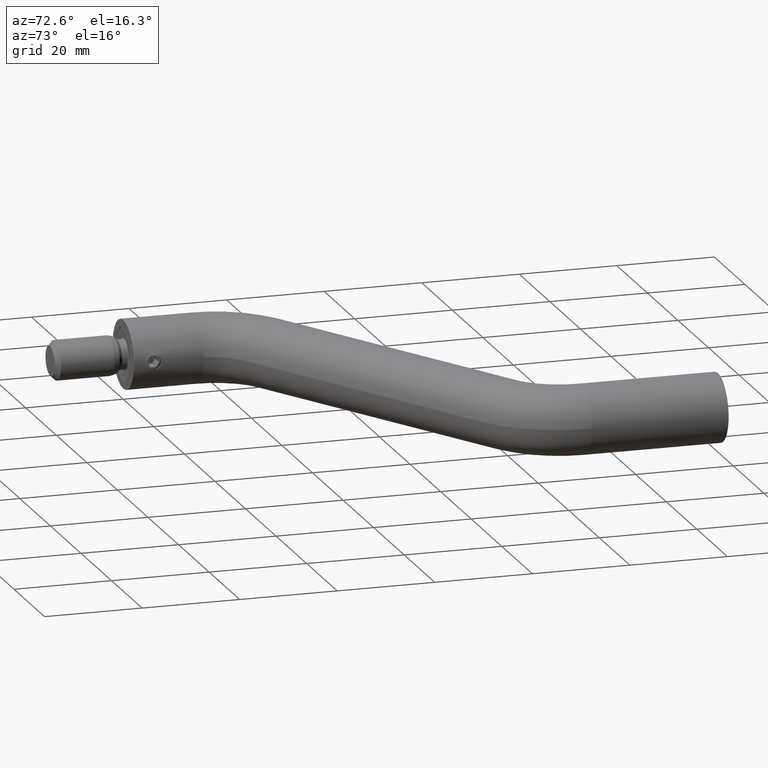
[diagram: clean part render]
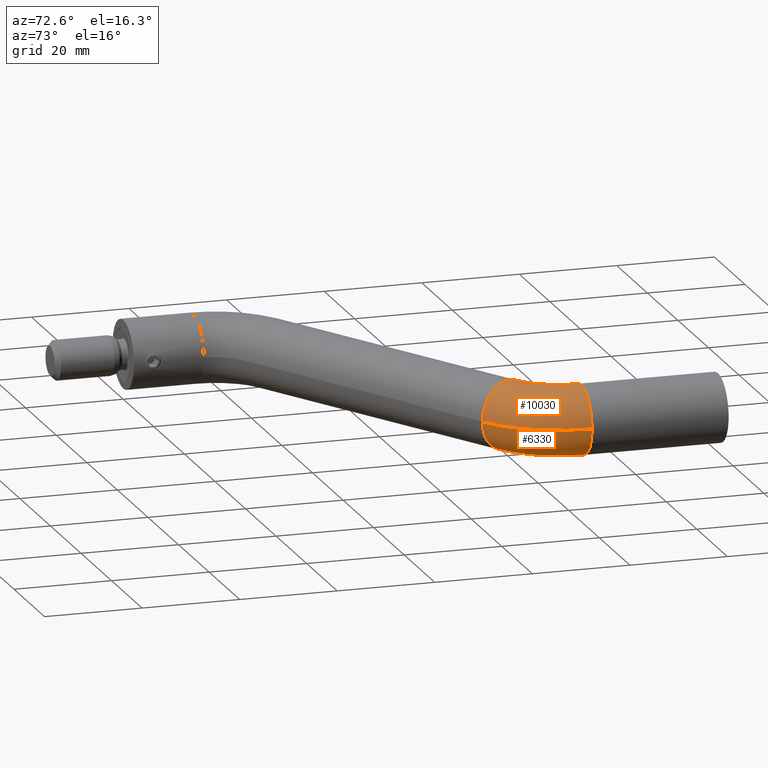
[diagram: same view with one multi-face feature highlighted, each face labeled with its STEP entity id]
A machine part, auxiliary view. The highlighted faces form ONE feature: a constant-radius fillet chain: 2 tangent blend faces with common blend radius 7 mm. The faces share edges in the B-rep.
Their STEP definitions:
[1] entity #10030 (Torus):
#662 = CARTESIAN_POINT ( 'NONE',  ( 70.00000000000000000, 72.00000000000001400, 0.0000000000000000000 ) ) ;
#747 = EDGE_CURVE ( 'NONE', #1949, #1143, #9984, .T. ) ;
#954 = VERTEX_POINT ( 'NONE', #5960 ) ;
#1143 = VERTEX_POINT ( 'NONE', #3610 ) ;
#1539 = DIRECTION ( 'NONE',  ( 0.0000000000000000000, 0.0000000000000000000, 1.000000000000000000 ) ) ;
#1832 = CARTESIAN_POINT ( 'NONE',  ( 55.00000000000000700, 72.00000000000001400, 0.0000000000000000000 ) ) ;
#1835 = CARTESIAN_POINT ( 'NONE',  ( 55.00000000000000700, 72.00000000000001400, -8.572527594031473200E-016 ) ) ;
#1949 = VERTEX_POINT ( 'NONE', #7813 ) ;
#2222 = DIRECTION ( 'NONE',  ( 0.0000000000000000000, 0.0000000000000000000, 1.000000000000000000 ) ) ;
#2734 = CARTESIAN_POINT ( 'NONE',  ( 62.49999999999996400, 59.00961894323340600, 0.0000000000000000000 ) ) ;
#2760 = VERTEX_POINT ( 'NONE', #12949 ) ;
#3610 = CARTESIAN_POINT ( 'NONE',  ( 77.00000000000001400, 72.00000000000001400, 0.0000000000000000000 ) ) ;
#3703 = DIRECTION ( 'NONE',  ( 0.0000000000000000000, 0.0000000000000000000, 1.000000000000000000 ) ) ;
#5245 = DIRECTION ( 'NONE',  ( 0.8660254037844398200, 0.4999999999999980000, 0.0000000000000000000 ) ) ;
#5309 = DIRECTION ( 'NONE',  ( 1.000000000000000000, 0.0000000000000000000, 0.0000000000000000000 ) ) ;
#5378 = VERTEX_POINT ( 'NONE', #11087 ) ;
#5480 = EDGE_CURVE ( 'NONE', #2760, #1949, #5840, .T. ) ;
#5641 = DIRECTION ( 'NONE',  ( -7.216449660063517500E-016, 1.000000000000000000, 0.0000000000000000000 ) ) ;
#5840 = CIRCLE ( 'NONE', #13898, 7.000000000000000000 ) ;
#5960 = CARTESIAN_POINT ( 'NONE',  ( 58.99999999999998600, 65.07179676972450000, 0.0000000000000000000 ) ) ;
#6003 = CARTESIAN_POINT ( 'NONE',  ( 55.00000000000000700, 72.00000000000001400, 0.0000000000000000000 ) ) ;
#6026 = EDGE_CURVE ( 'NONE', #5378, #1143, #11971, .T. ) ;
#7236 = DIRECTION ( 'NONE',  ( 1.000000000000000000, 0.0000000000000000000, 0.0000000000000000000 ) ) ;
#7813 = CARTESIAN_POINT ( 'NONE',  ( 70.00000000000000000, 72.00000000000001400, 7.000000000000000000 ) ) ;
#8504 = EDGE_CURVE ( 'NONE', #954, #2760, #12844, .T. ) ;
#8912 = ORIENTED_EDGE ( 'NONE', *, *, #8504, .F. ) ;
#8913 = DIRECTION ( 'NONE',  ( -7.216449660063517500E-016, 1.000000000000000000, 0.0000000000000000000 ) ) ;
#8923 = ORIENTED_EDGE ( 'NONE', *, *, #11331, .T. ) ;
#8946 = AXIS2_PLACEMENT_3D ( 'NONE', #1832, #15150, #5309 ) ;
#9519 = AXIS2_PLACEMENT_3D ( 'NONE', #11404, #8913, #1539 ) ;
#9687 = CIRCLE ( 'NONE', #14210, 7.000000000000000000 ) ;
#9984 = CIRCLE ( 'NONE', #9519, 7.000000000000000000 ) ;
#10030 = ADVANCED_FACE ( 'NONE', ( #15911 ), #15122, .T. ) ;
#10335 = DIRECTION ( 'NONE',  ( 0.0000000000000000000, 0.0000000000000000000, 1.000000000000000000 ) ) ;
#10784 = ORIENTED_EDGE ( 'NONE', *, *, #6026, .T. ) ;
#11087 = CARTESIAN_POINT ( 'NONE',  ( 65.99999999999994300, 52.94744111674232600, 8.572527594031473200E-016 ) ) ;
#11331 = EDGE_CURVE ( 'NONE', #954, #5378, #9687, .T. ) ;
#11404 = CARTESIAN_POINT ( 'NONE',  ( 70.00000000000000000, 72.00000000000001400, 0.0000000000000000000 ) ) ;
#11971 = CIRCLE ( 'NONE', #14958, 22.00000000000000700 ) ;
#12215 = ORIENTED_EDGE ( 'NONE', *, *, #747, .F. ) ;
#12844 = CIRCLE ( 'NONE', #13487, 7.999999999999992900 ) ;
#12949 = CARTESIAN_POINT ( 'NONE',  ( 63.00000000000000000, 72.00000000000001400, -8.572527594031465300E-016 ) ) ;
#13197 = DIRECTION ( 'NONE',  ( 1.000000000000000000, 0.0000000000000000000, 0.0000000000000000000 ) ) ;
#13368 = ORIENTED_EDGE ( 'NONE', *, *, #5480, .F. ) ;
#13487 = AXIS2_PLACEMENT_3D ( 'NONE', #1835, #2222, #13197 ) ;
#13898 = AXIS2_PLACEMENT_3D ( 'NONE', #662, #5641, #14235 ) ;
#14210 = AXIS2_PLACEMENT_3D ( 'NONE', #2734, #5245, #10335 ) ;
#14235 = DIRECTION ( 'NONE',  ( 0.0000000000000000000, 0.0000000000000000000, 1.000000000000000000 ) ) ;
#14763 = EDGE_LOOP ( 'NONE', ( #8923, #10784, #12215, #13368, #8912 ) ) ;
#14958 = AXIS2_PLACEMENT_3D ( 'NONE', #6003, #3703, #7236 ) ;
#15122 = TOROIDAL_SURFACE ( 'NONE', #8946, 14.99999999999999800, 7.000000000000000000 ) ;
#15150 = DIRECTION ( 'NONE',  ( 0.0000000000000000000, 0.0000000000000000000, 1.000000000000000000 ) ) ;
#15911 = FACE_OUTER_BOUND ( 'NONE', #14763, .T. ) ;
[2] entity #6330 (Torus):
#954 = VERTEX_POINT ( 'NONE', #5960 ) ;
#1143 = VERTEX_POINT ( 'NONE', #3610 ) ;
#1152 = ORIENTED_EDGE ( 'NONE', *, *, #15955, .T. ) ;
#1835 = CARTESIAN_POINT ( 'NONE',  ( 55.00000000000000700, 72.00000000000001400, -8.572527594031473200E-016 ) ) ;
#1987 = CARTESIAN_POINT ( 'NONE',  ( 62.49999999999996400, 59.00961894323340600, 0.0000000000000000000 ) ) ;
#2222 = DIRECTION ( 'NONE',  ( 0.0000000000000000000, 0.0000000000000000000, 1.000000000000000000 ) ) ;
#2325 = CARTESIAN_POINT ( 'NONE',  ( 70.00000000000000000, 72.00000000000001400, 0.0000000000000000000 ) ) ;
#2744 = ORIENTED_EDGE ( 'NONE', *, *, #6026, .F. ) ;
#2760 = VERTEX_POINT ( 'NONE', #12949 ) ;
#3053 = DIRECTION ( 'NONE',  ( 1.000000000000000000, 0.0000000000000000000, 0.0000000000000000000 ) ) ;
#3218 = DIRECTION ( 'NONE',  ( 0.8660254037844398200, 0.4999999999999980000, 0.0000000000000000000 ) ) ;
#3462 = DIRECTION ( 'NONE',  ( -7.216449660063517500E-016, 1.000000000000000000, 0.0000000000000000000 ) ) ;
#3546 = DIRECTION ( 'NONE',  ( 0.0000000000000000000, 0.0000000000000000000, 1.000000000000000000 ) ) ;
#3610 = CARTESIAN_POINT ( 'NONE',  ( 77.00000000000001400, 72.00000000000001400, 0.0000000000000000000 ) ) ;
#3625 = VERTEX_POINT ( 'NONE', #4930 ) ;
#3703 = DIRECTION ( 'NONE',  ( 0.0000000000000000000, 0.0000000000000000000, 1.000000000000000000 ) ) ;
#4276 = EDGE_LOOP ( 'NONE', ( #2744, #1152, #5133, #5664, #13937 ) ) ;
#4453 = DIRECTION ( 'NONE',  ( 0.0000000000000000000, 0.0000000000000000000, 1.000000000000000000 ) ) ;
#4930 = CARTESIAN_POINT ( 'NONE',  ( 70.00000000000000000, 72.00000000000001400, -7.000000000000000000 ) ) ;
#5133 = ORIENTED_EDGE ( 'NONE', *, *, #8504, .T. ) ;
#5378 = VERTEX_POINT ( 'NONE', #11087 ) ;
#5664 = ORIENTED_EDGE ( 'NONE', *, *, #8589, .F. ) ;
#5886 = DIRECTION ( 'NONE',  ( 0.0000000000000000000, 0.0000000000000000000, 1.000000000000000000 ) ) ;
#5960 = CARTESIAN_POINT ( 'NONE',  ( 58.99999999999998600, 65.07179676972450000, 0.0000000000000000000 ) ) ;
#6003 = CARTESIAN_POINT ( 'NONE',  ( 55.00000000000000700, 72.00000000000001400, 0.0000000000000000000 ) ) ;
#6026 = EDGE_CURVE ( 'NONE', #5378, #1143, #11971, .T. ) ;
#6330 = ADVANCED_FACE ( 'NONE', ( #15844 ), #12546, .T. ) ;
#6744 = AXIS2_PLACEMENT_3D ( 'NONE', #1987, #3218, #5886 ) ;
#7236 = DIRECTION ( 'NONE',  ( 1.000000000000000000, 0.0000000000000000000, 0.0000000000000000000 ) ) ;
#8504 = EDGE_CURVE ( 'NONE', #954, #2760, #12844, .T. ) ;
#8534 = AXIS2_PLACEMENT_3D ( 'NONE', #11023, #3462, #10869 ) ;
#8589 = EDGE_CURVE ( 'NONE', #3625, #2760, #9747, .T. ) ;
#9207 = EDGE_CURVE ( 'NONE', #1143, #3625, #14951, .T. ) ;
#9747 = CIRCLE ( 'NONE', #11232, 7.000000000000000000 ) ;
#9778 = AXIS2_PLACEMENT_3D ( 'NONE', #10441, #4453, #3053 ) ;
#10441 = CARTESIAN_POINT ( 'NONE',  ( 55.00000000000000700, 72.00000000000001400, 0.0000000000000000000 ) ) ;
#10869 = DIRECTION ( 'NONE',  ( 0.0000000000000000000, 0.0000000000000000000, 1.000000000000000000 ) ) ;
#10947 = DIRECTION ( 'NONE',  ( -7.216449660063517500E-016, 1.000000000000000000, 0.0000000000000000000 ) ) ;
#11023 = CARTESIAN_POINT ( 'NONE',  ( 70.00000000000000000, 72.00000000000001400, 0.0000000000000000000 ) ) ;
#11087 = CARTESIAN_POINT ( 'NONE',  ( 65.99999999999994300, 52.94744111674232600, 8.572527594031473200E-016 ) ) ;
#11232 = AXIS2_PLACEMENT_3D ( 'NONE', #2325, #10947, #3546 ) ;
#11971 = CIRCLE ( 'NONE', #14958, 22.00000000000000700 ) ;
#12546 = TOROIDAL_SURFACE ( 'NONE', #9778, 14.99999999999999800, 7.000000000000000000 ) ;
#12844 = CIRCLE ( 'NONE', #13487, 7.999999999999992900 ) ;
#12949 = CARTESIAN_POINT ( 'NONE',  ( 63.00000000000000000, 72.00000000000001400, -8.572527594031465300E-016 ) ) ;
#13197 = DIRECTION ( 'NONE',  ( 1.000000000000000000, 0.0000000000000000000, 0.0000000000000000000 ) ) ;
#13487 = AXIS2_PLACEMENT_3D ( 'NONE', #1835, #2222, #13197 ) ;
#13937 = ORIENTED_EDGE ( 'NONE', *, *, #9207, .F. ) ;
#14217 = CIRCLE ( 'NONE', #6744, 7.000000000000000000 ) ;
#14951 = CIRCLE ( 'NONE', #8534, 7.000000000000000000 ) ;
#14958 = AXIS2_PLACEMENT_3D ( 'NONE', #6003, #3703, #7236 ) ;
#15844 = FACE_OUTER_BOUND ( 'NONE', #4276, .T. ) ;
#15955 = EDGE_CURVE ( 'NONE', #5378, #954, #14217, .T. ) ;